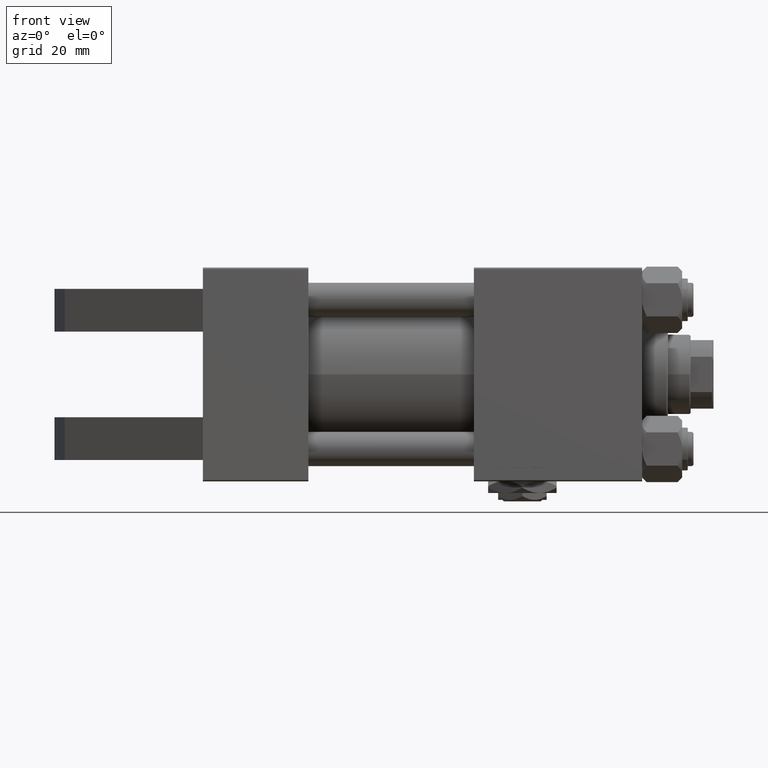
[diagram: clean part render]
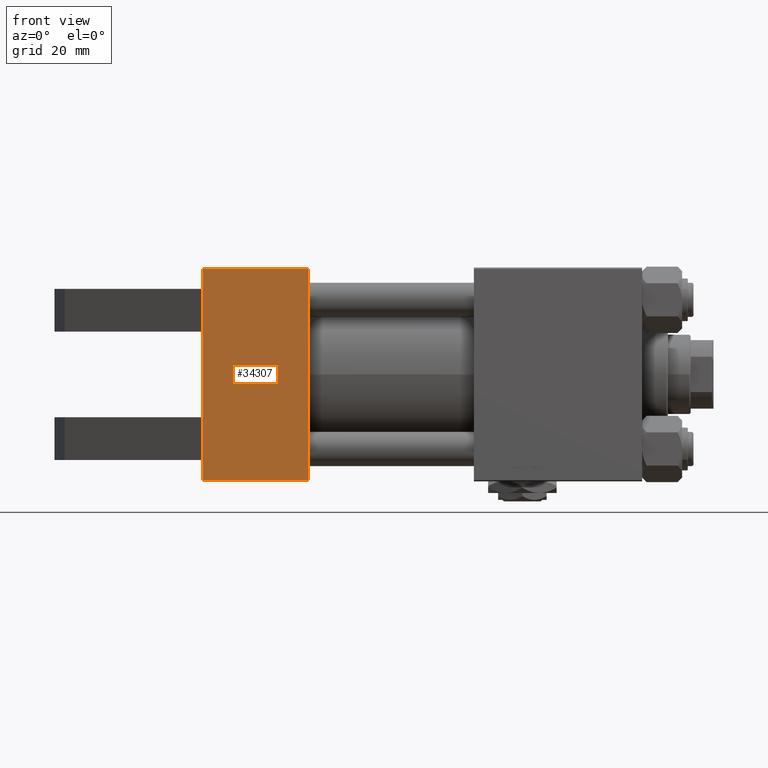
[diagram: same view with one face highlighted and labeled with its STEP entity id]
A machine part, front view. The second image highlights one B-rep face of the part: STEP entity #34307.
In plain terms, the highlighted planar face has unit normal (0, -1, -0).
Its self-contained STEP definition (entity closure, byte-faithful):
#263 = ORIENTED_EDGE ( 'NONE', *, *, #38802, .F. ) ;
#267 = ORIENTED_EDGE ( 'NONE', *, *, #28922, .F. ) ;
#1531 = LINE ( 'NONE', #17409, #16698 ) ;
#1710 = FACE_OUTER_BOUND ( 'NONE', #40292, .T. ) ;
#6115 = LINE ( 'NONE', #26138, #43933 ) ;
#7509 = DIRECTION ( 'NONE',  ( 0.000000000000000000, -1.000000000000000000, -9.251858538542972814E-17 ) ) ;
#7687 = CARTESIAN_POINT ( 'NONE',  ( 37.00000000000000000, 36.99999999999997868, -37.50000000000000000 ) ) ;
#7940 = LINE ( 'NONE', #7687, #43040 ) ;
#8548 = ORIENTED_EDGE ( 'NONE', *, *, #32615, .T. ) ;
#9211 = VERTEX_POINT ( 'NONE', #39075 ) ;
#9263 = DIRECTION ( 'NONE',  ( 0.000000000000000000, 1.000000000000000000, 9.251858538542972814E-17 ) ) ;
#9631 = AXIS2_PLACEMENT_3D ( 'NONE', #25643, #32407, #9263 ) ;
#9758 = DIRECTION ( 'NONE',  ( -1.000000000000000000, 0.000000000000000000, 0.000000000000000000 ) ) ;
#11406 = LINE ( 'NONE', #39222, #48993 ) ;
#12142 = VERTEX_POINT ( 'NONE', #34602 ) ;
#13704 = CARTESIAN_POINT ( 'NONE',  ( 0.000000000000000000, -30.00000000000000000, -37.50000000000000711 ) ) ;
#16339 = EDGE_CURVE ( 'NONE', #31896, #9211, #11406, .T. ) ;
#16698 = VECTOR ( 'NONE', #49077, 1000.000000000000000 ) ;
#16832 = ORIENTED_EDGE ( 'NONE', *, *, #45025, .T. ) ;
#16835 = LINE ( 'NONE', #13704, #19839 ) ;
#17409 = CARTESIAN_POINT ( 'NONE',  ( 0.000000000000000000, 37.49999999999999289, -37.50000000000000000 ) ) ;
#18123 = CARTESIAN_POINT ( 'NONE',  ( 37.00000000000000000, 37.49999999999999289, -37.50000000000000000 ) ) ;
#18663 = VERTEX_POINT ( 'NONE', #33047 ) ;
#19839 = VECTOR ( 'NONE', #29557, 1000.000000000000000 ) ;
#21072 = CARTESIAN_POINT ( 'NONE',  ( 37.00000000000000000, -37.00000000000002132, -37.50000000000000711 ) ) ;
#21438 = ORIENTED_EDGE ( 'NONE', *, *, #23214, .T. ) ;
#21890 = DIRECTION ( 'NONE',  ( 0.000000000000000000, -1.000000000000000000, -9.251858538542972814E-17 ) ) ;
#22023 = DIRECTION ( 'NONE',  ( -0.000000000000000000, -1.000000000000000000, -0.000000000000000000 ) ) ;
#23214 = EDGE_CURVE ( 'NONE', #29252, #9211, #16835, .T. ) ;
#23555 = DIRECTION ( 'NONE',  ( 1.000000000000000000, 0.000000000000000000, 0.000000000000000000 ) ) ;
#25643 = CARTESIAN_POINT ( 'NONE',  ( 37.00000000000000000, 37.49999999999999289, -37.50000000000000000 ) ) ;
#26138 = CARTESIAN_POINT ( 'NONE',  ( 0.000000000000000000, -37.00000000000002132, -37.50000000000000711 ) ) ;
#28277 = VERTEX_POINT ( 'NONE', #49572 ) ;
#28633 = VECTOR ( 'NONE', #21890, 1000.000000000000000 ) ;
#28922 = EDGE_CURVE ( 'NONE', #12142, #18663, #1531, .T. ) ;
#29252 = VERTEX_POINT ( 'NONE', #35715 ) ;
#29557 = DIRECTION ( 'NONE',  ( -0.000000000000000000, 1.000000000000000000, -0.000000000000000000 ) ) ;
#29608 = EDGE_CURVE ( 'NONE', #18663, #31896, #46165, .T. ) ;
#29829 = CARTESIAN_POINT ( 'NONE',  ( 37.00000000000000000, 36.99999999999997868, -37.50000000000000000 ) ) ;
#31896 = VERTEX_POINT ( 'NONE', #35984 ) ;
#32407 = DIRECTION ( 'NONE',  ( 0.000000000000000000, 9.251858538542972814E-17, -1.000000000000000000 ) ) ;
#32615 = EDGE_CURVE ( 'NONE', #43084, #43583, #49805, .T. ) ;
#32664 = PLANE ( 'NONE',  #9631 ) ;
#33047 = CARTESIAN_POINT ( 'NONE',  ( 0.000000000000000000, 30.00000000000000000, -37.50000000000000711 ) ) ;
#33224 = ORIENTED_EDGE ( 'NONE', *, *, #43851, .T. ) ;
#33983 = DIRECTION ( 'NONE',  ( 0.000000000000000000, -1.000000000000000000, -9.251858538542972814E-17 ) ) ;
#34137 = VECTOR ( 'NONE', #22023, 1000.000000000000000 ) ;
#34307 = ADVANCED_FACE ( 'NONE', ( #1710 ), #32664, .T. ) ;
#34602 = CARTESIAN_POINT ( 'NONE',  ( 0.000000000000000000, 36.99999999999997868, -37.50000000000000000 ) ) ;
#35715 = CARTESIAN_POINT ( 'NONE',  ( 0.000000000000000000, -30.00000000000000000, -37.50000000000000711 ) ) ;
#35984 = CARTESIAN_POINT ( 'NONE',  ( 0.000000000000000000, 15.00000000000000000, -37.50000000000000000 ) ) ;
#36649 = ORIENTED_EDGE ( 'NONE', *, *, #16339, .F. ) ;
#37751 = LINE ( 'NONE', #45524, #28633 ) ;
#38396 = CARTESIAN_POINT ( 'NONE',  ( 0.000000000000000000, 30.00000000000000000, -37.50000000000000711 ) ) ;
#38802 = EDGE_CURVE ( 'NONE', #29252, #28277, #37751, .T. ) ;
#39075 = CARTESIAN_POINT ( 'NONE',  ( 0.000000000000000000, -15.00000000000000000, -37.50000000000000711 ) ) ;
#39222 = CARTESIAN_POINT ( 'NONE',  ( 0.000000000000000000, 37.49999999999999289, -37.50000000000000000 ) ) ;
#40292 = EDGE_LOOP ( 'NONE', ( #267, #33224, #8548, #16832, #263, #21438, #36649, #48754 ) ) ;
#43040 = VECTOR ( 'NONE', #23555, 1000.000000000000000 ) ;
#43084 = VERTEX_POINT ( 'NONE', #29829 ) ;
#43583 = VERTEX_POINT ( 'NONE', #21072 ) ;
#43851 = EDGE_CURVE ( 'NONE', #12142, #43084, #7940, .T. ) ;
#43933 = VECTOR ( 'NONE', #9758, 1000.000000000000000 ) ;
#45025 = EDGE_CURVE ( 'NONE', #43583, #28277, #6115, .T. ) ;
#45524 = CARTESIAN_POINT ( 'NONE',  ( 0.000000000000000000, 37.49999999999999289, -37.50000000000000000 ) ) ;
#46159 = VECTOR ( 'NONE', #33983, 1000.000000000000000 ) ;
#46165 = LINE ( 'NONE', #38396, #34137 ) ;
#48754 = ORIENTED_EDGE ( 'NONE', *, *, #29608, .F. ) ;
#48993 = VECTOR ( 'NONE', #7509, 1000.000000000000000 ) ;
#49077 = DIRECTION ( 'NONE',  ( 0.000000000000000000, -1.000000000000000000, -9.251858538542972814E-17 ) ) ;
#49572 = CARTESIAN_POINT ( 'NONE',  ( 0.000000000000000000, -37.00000000000002132, -37.50000000000000711 ) ) ;
#49805 = LINE ( 'NONE', #18123, #46159 ) ;